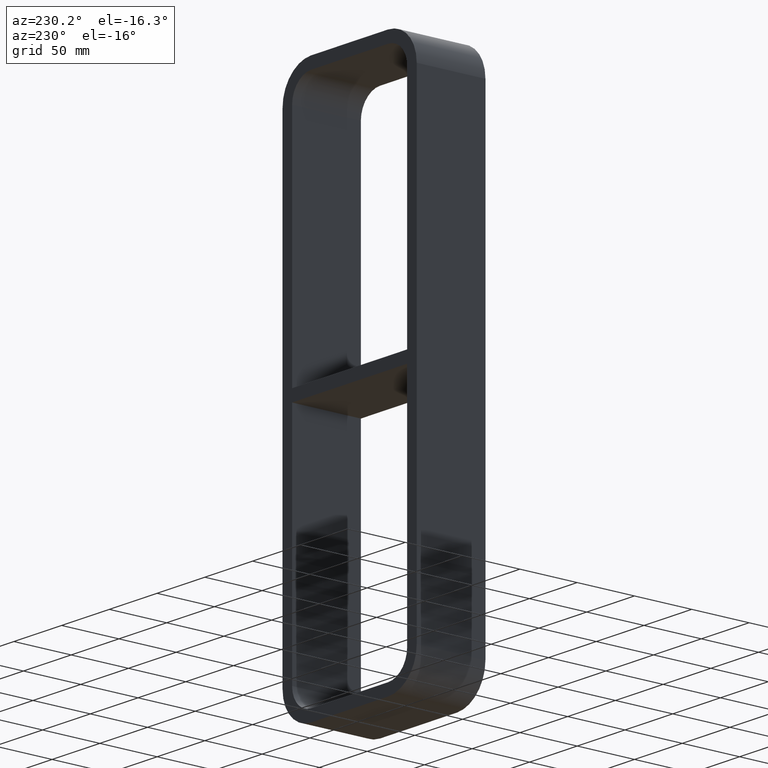
[diagram: clean part render]
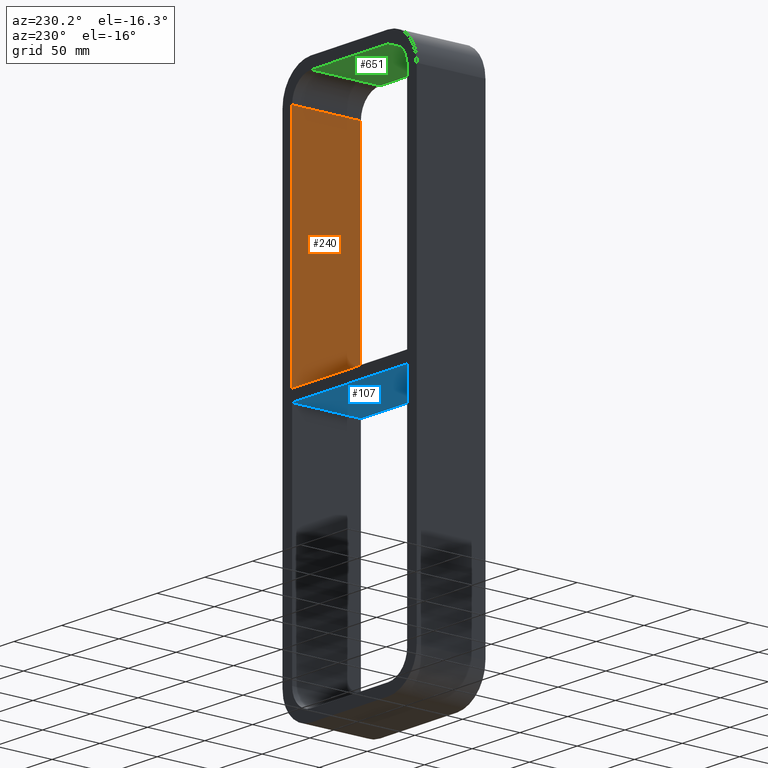
[diagram: same view with three faces highlighted in distinct colors, each labeled with its STEP entity id]
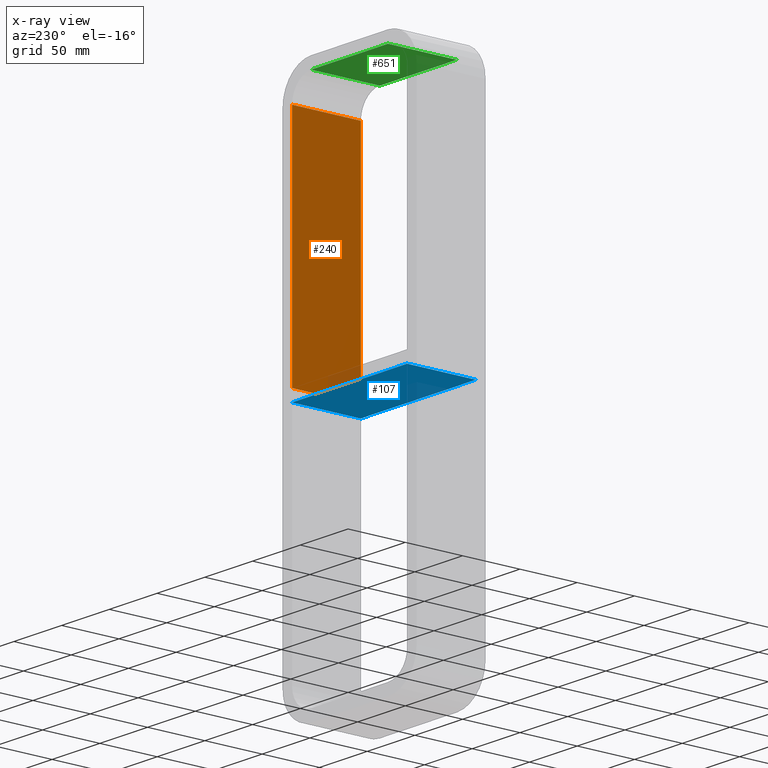
[diagram: x-ray of the same camera — body ghosted, the three highlighted faces saturated]
A machine part, auxiliary view with three faces highlighted in distinct colors.
The next image is the same camera in x-ray (body ghosted, the three faces saturated) — at least one of them is partly hidden behind the body in this view.
Their STEP definitions:

[orange] entity #240 — the highlighted planar face has unit normal (1, 0, 0).
#115=CARTESIAN_POINT('',(60.249999999999901,-3.0,5.0));
#116=VERTEX_POINT('',#115);
#123=CARTESIAN_POINT('',(60.249999999999901,57.0,5.0));
#124=VERTEX_POINT('',#123);
#125=CARTESIAN_POINT('',(60.250000000000021,57.000000000000007,5.0));
#126=DIRECTION('',(0.0,-1.0,0.0));
#127=VECTOR('',#126,60.000000000000007);
#128=LINE('',#125,#127);
#129=EDGE_CURVE('',#124,#116,#128,.T.);
#210=CARTESIAN_POINT('',(60.250000000000014,0.0,222.99999999999997));
#211=DIRECTION('',(1.0,0.0,0.0));
#212=DIRECTION('',(0.0,0.0,-1.0));
#213=AXIS2_PLACEMENT_3D('',#210,#211,#212);
#214=PLANE('',#213);
#215=ORIENTED_EDGE('',*,*,#129,.T.);
#216=CARTESIAN_POINT('',(60.250000000000014,-3.0,202.99999999999997));
#217=VERTEX_POINT('',#216);
#218=CARTESIAN_POINT('',(60.250000000000014,-3.0,202.99999999999997));
#219=DIRECTION('',(0.0,0.0,-1.0));
#220=VECTOR('',#219,197.99999999999997);
#221=LINE('',#218,#220);
#222=EDGE_CURVE('',#217,#116,#221,.T.);
#223=ORIENTED_EDGE('',*,*,#222,.F.);
#224=CARTESIAN_POINT('',(60.250000000000014,57.0,202.99999999999997));
#225=VERTEX_POINT('',#224);
#226=CARTESIAN_POINT('',(60.250000000000014,57.0,202.99999999999997));
#227=DIRECTION('',(0.0,-1.0,0.0));
#228=VECTOR('',#227,60.0);
#229=LINE('',#226,#228);
#230=EDGE_CURVE('',#225,#217,#229,.T.);
#231=ORIENTED_EDGE('',*,*,#230,.F.);
#232=CARTESIAN_POINT('',(60.250000000000014,57.0,5.0));
#233=DIRECTION('',(0.0,0.0,1.0));
#234=VECTOR('',#233,197.99999999999997);
#235=LINE('',#232,#234);
#236=EDGE_CURVE('',#124,#225,#235,.T.);
#237=ORIENTED_EDGE('',*,*,#236,.F.);
#238=EDGE_LOOP('',(#215,#223,#231,#237));
#239=FACE_OUTER_BOUND('',#238,.T.);
#240=ADVANCED_FACE('',(#239),#214,.F.);

[blue] entity #107 — the highlighted planar face has unit normal (0, 0, -1).
#68=CARTESIAN_POINT('',(60.249999999999901,-3.0,-5.000000000009095));
#69=DIRECTION('',(0.0,0.0,-1.0));
#70=DIRECTION('',(-1.0,0.0,0.0));
#71=AXIS2_PLACEMENT_3D('',#68,#69,#70);
#72=PLANE('',#71);
#73=CARTESIAN_POINT('',(60.249999999999901,-3.0,-5.000000000009095));
#74=VERTEX_POINT('',#73);
#75=CARTESIAN_POINT('',(-60.249999999999702,-3.0,-5.000000000009095));
#76=VERTEX_POINT('',#75);
#77=CARTESIAN_POINT('',(60.249999999999901,-3.0,-5.000000000009095));
#78=DIRECTION('',(-1.0,0.0,0.0));
#79=VECTOR('',#78,120.4999999999996);
#80=LINE('',#77,#79);
#81=EDGE_CURVE('',#74,#76,#80,.T.);
#82=ORIENTED_EDGE('',*,*,#81,.T.);
#83=CARTESIAN_POINT('',(-60.249999999999702,57.0,-5.000000000009095));
#84=VERTEX_POINT('',#83);
#85=CARTESIAN_POINT('',(-60.25,57.000000000000007,-5.000000000009095));
#86=DIRECTION('',(0.0,-1.0,0.0));
#87=VECTOR('',#86,60.000000000000007);
#88=LINE('',#85,#87);
#89=EDGE_CURVE('',#84,#76,#88,.T.);
#90=ORIENTED_EDGE('',*,*,#89,.F.);
#91=CARTESIAN_POINT('',(60.249999999999901,57.0,-5.000000000009095));
#92=VERTEX_POINT('',#91);
#93=CARTESIAN_POINT('',(60.249999999999901,57.0,-5.000000000009095));
#94=DIRECTION('',(-1.0,0.0,0.0));
#95=VECTOR('',#94,120.4999999999996);
#96=LINE('',#93,#95);
#97=EDGE_CURVE('',#92,#84,#96,.T.);
#98=ORIENTED_EDGE('',*,*,#97,.F.);
#99=CARTESIAN_POINT('',(60.250000000000014,-3.0,-5.000000000009095));
#100=DIRECTION('',(0.0,1.0,0.0));
#101=VECTOR('',#100,60.000000000000007);
#102=LINE('',#99,#101);
#103=EDGE_CURVE('',#74,#92,#102,.T.);
#104=ORIENTED_EDGE('',*,*,#103,.F.);
#105=EDGE_LOOP('',(#82,#90,#98,#104));
#106=FACE_OUTER_BOUND('',#105,.T.);
#107=ADVANCED_FACE('',(#106),#72,.T.);

[green] entity #651 — the highlighted planar face has unit normal (0, 0, 1).
#349=CARTESIAN_POINT('',(-40.25,-3.0,222.99999999999997));
#350=VERTEX_POINT('',#349);
#358=CARTESIAN_POINT('',(40.25,-3.0,222.99999999999997));
#359=VERTEX_POINT('',#358);
#360=CARTESIAN_POINT('',(-40.25,-3.0,222.99999999999997));
#361=DIRECTION('',(1.0,0.0,0.0));
#362=VECTOR('',#361,80.5);
#363=LINE('',#360,#362);
#364=EDGE_CURVE('',#350,#359,#363,.T.);
#568=CARTESIAN_POINT('',(-40.25,57.0,222.99999999999997));
#569=VERTEX_POINT('',#568);
#577=CARTESIAN_POINT('',(-40.25,57.0,222.99999999999997));
#578=DIRECTION('',(0.0,-1.0,0.0));
#579=VECTOR('',#578,60.0);
#580=LINE('',#577,#579);
#581=EDGE_CURVE('',#569,#350,#580,.T.);
#616=CARTESIAN_POINT('',(40.25,57.0,222.99999999999997));
#617=VERTEX_POINT('',#616);
#618=CARTESIAN_POINT('',(40.25,-3.0,222.99999999999997));
#619=DIRECTION('',(0.0,1.0,0.0));
#620=VECTOR('',#619,60.0);
#621=LINE('',#618,#620);
#622=EDGE_CURVE('',#359,#617,#621,.T.);
#635=CARTESIAN_POINT('',(-60.25,0.0,222.99999999999997));
#636=DIRECTION('',(0.0,0.0,1.0));
#637=DIRECTION('',(1.0,0.0,0.0));
#638=AXIS2_PLACEMENT_3D('',#635,#636,#637);
#639=PLANE('',#638);
#640=ORIENTED_EDGE('',*,*,#581,.F.);
#641=CARTESIAN_POINT('',(40.25,57.0,222.99999999999997));
#642=DIRECTION('',(-1.0,0.0,0.0));
#643=VECTOR('',#642,80.5);
#644=LINE('',#641,#643);
#645=EDGE_CURVE('',#617,#569,#644,.T.);
#646=ORIENTED_EDGE('',*,*,#645,.F.);
#647=ORIENTED_EDGE('',*,*,#622,.F.);
#648=ORIENTED_EDGE('',*,*,#364,.F.);
#649=EDGE_LOOP('',(#640,#646,#647,#648));
#650=FACE_OUTER_BOUND('',#649,.T.);
#651=ADVANCED_FACE('',(#650),#639,.F.);